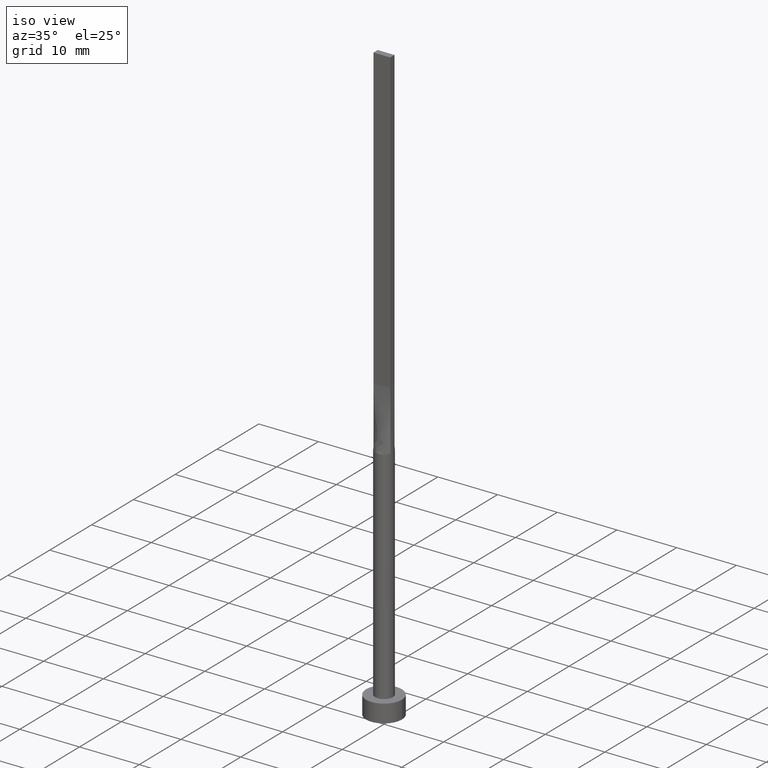
[diagram: clean part render]
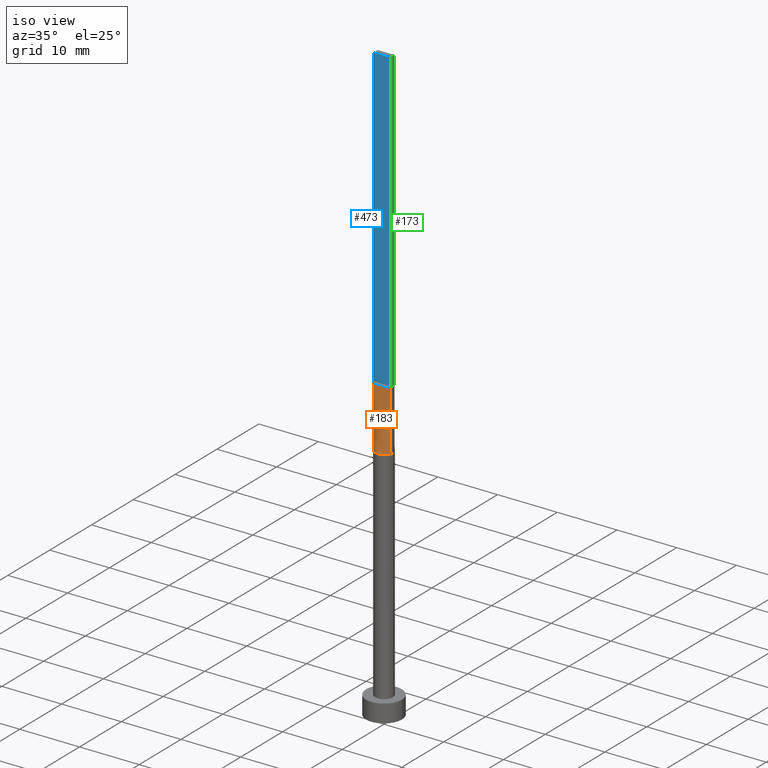
[diagram: same view with three faces highlighted in distinct colors, each labeled with its STEP entity id]
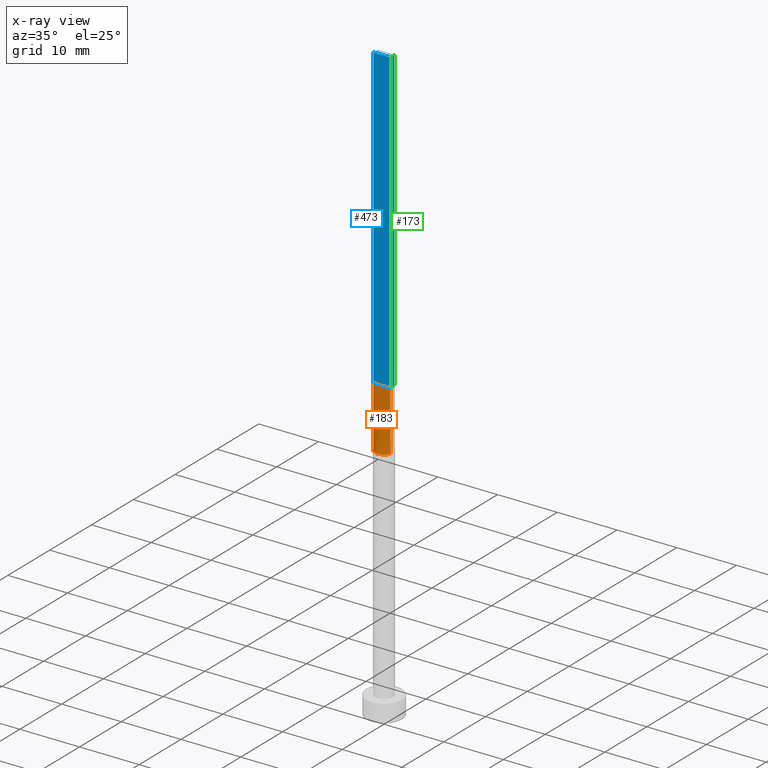
[diagram: x-ray of the same camera — body ghosted, the three highlighted faces saturated]
A machine part, iso view with three faces highlighted in distinct colors.
The next image is the same camera in x-ray (body ghosted, the three faces saturated) — at least one of them is partly hidden behind the body in this view.
Their STEP definitions:

[orange] entity #183 — the highlighted face is a freeform B-spline surface patch.
#3 = CARTESIAN_POINT ( 'NONE',  ( -0.5833333333333332593, -0.4999999999999996669, 50.00000000000000711 ) ) ;
#22 = EDGE_LOOP ( 'NONE', ( #106, #58, #563, #459 ) ) ;
#23 = CARTESIAN_POINT ( 'NONE',  ( -1.373020107211261109, -0.6153643240040214124, 39.99999999999999289 ) ) ;
#29 = CARTESIAN_POINT ( 'NONE',  ( 0.8182264876570946033, -1.266912425724810998, 40.00000000000000000 ) ) ;
#57 = DIRECTION ( 'NONE',  ( 0.000000000000000000, 0.000000000000000000, 1.000000000000000000 ) ) ;
#58 = ORIENTED_EDGE ( 'NONE', *, *, #359, .T. ) ;
#60 = VERTEX_POINT ( 'NONE', #192 ) ;
#66 = CARTESIAN_POINT ( 'NONE',  ( -0.1761797990592596230, -1.500000000000000000, 40.00000000000000000 ) ) ;
#68 = CARTESIAN_POINT ( 'NONE',  ( 0.1166666666666668073, -0.4999999999999997780, 50.00000000000000711 ) ) ;
#79 = CARTESIAN_POINT ( 'NONE',  ( -0.3520402531411755964, -1.468082505288407447, 40.00000000000000000 ) ) ;
#102 = CARTESIAN_POINT ( 'NONE',  ( 0.6732153042498572049, -1.351288176626052939, 40.00000000000000000 ) ) ;
#104 = CARTESIAN_POINT ( 'NONE',  ( -0.8166666666666667629, -0.4999999999999996669, 50.00000000000000000 ) ) ;
#105 = EDGE_CURVE ( 'NONE', #160, #60, #541, .T. ) ;
#106 = ORIENTED_EDGE ( 'NONE', *, *, #105, .T. ) ;
#111 = CARTESIAN_POINT ( 'NONE',  ( 1.412612867392256222, -0.5045045954972348090, 40.00000000000000000 ) ) ;
#115 = EDGE_CURVE ( 'NONE', #209, #160, #499, .T. ) ;
#127 = CARTESIAN_POINT ( 'NONE',  ( -1.406306433696128178, -0.5022522977486166829, 45.00000000000000000 ) ) ;
#130 = CARTESIAN_POINT ( 'NONE',  ( -0.6732153042498583151, -1.351288176626052051, 40.00000000000000000 ) ) ;
#157 = CARTESIAN_POINT ( 'NONE',  ( -1.166666666666666519, -0.4999999999999995559, 50.00000000000000000 ) ) ;
#159 = CARTESIAN_POINT ( 'NONE',  ( 0.8166666666666667629, -0.4999999999999997780, 50.00000000000000000 ) ) ;
#160 = VERTEX_POINT ( 'NONE', #547 ) ;
#163 = CARTESIAN_POINT ( 'NONE',  ( 1.062433464748102629, -1.070418989248103747, 39.99999999999998579 ) ) ;
#166 = CARTESIAN_POINT ( 'NONE',  ( 1.399999999999999911, -0.4999999999999997780, 50.00000000000000000 ) ) ;
#176 = CARTESIAN_POINT ( 'NONE',  ( -1.399999999999999911, -0.4999999999999995559, 50.00000000000000000 ) ) ;
#180 = VERTEX_POINT ( 'NONE', #413 ) ;
#183 = ADVANCED_FACE ( 'NONE', ( #239 ), #190, .T. ) ;
#190 = B_SPLINE_SURFACE_WITH_KNOTS ( 'NONE', 3, 1, ( 
 ( #329, #385 ),
 ( #23, #562 ),
 ( #495, #157 ),
 ( #342, #533 ),
 ( #514, #104 ),
 ( #230, #3 ),
 ( #130, #317 ),
 ( #79, #474 ),
 ( #66, #516 ),
 ( #570, #68 ),
 ( #431, #567 ),
 ( #102, #394 ),
 ( #29, #213 ),
 ( #163, #159 ),
 ( #247, #346 ),
 ( #343, #478 ),
 ( #204, #348 ),
 ( #111, #166 ) ),
 .UNSPECIFIED., .F., .F., .F.,
 ( 4, 2, 2, 2, 2, 2, 2, 2, 4 ),
 ( 2, 2 ),
 ( 0.000000000000000000, 0.1250000000000000000, 0.2500000000000000000, 0.3750000000000000000, 0.5000000000000000000, 0.6250000000000000000, 0.7500000000000000000, 0.8750000000000000000, 1.000000000000000000 ),
 ( 0.000000000000000000, 1.000000000000000000 ),
 .UNSPECIFIED. ) ;
#192 = CARTESIAN_POINT ( 'NONE',  ( 1.412648369950143756, -0.5045174509283282260, 40.00000000000000000 ) ) ;
#204 = CARTESIAN_POINT ( 'NONE',  ( 1.373020107211260665, -0.6153643240040224116, 40.00000000000000000 ) ) ;
#209 = VERTEX_POINT ( 'NONE', #176 ) ;
#213 = CARTESIAN_POINT ( 'NONE',  ( 0.5833333333333334814, -0.4999999999999997780, 50.00000000000000000 ) ) ;
#230 = CARTESIAN_POINT ( 'NONE',  ( -0.8182264876570952694, -1.266912425724809665, 40.00000000000000000 ) ) ;
#232 = DIRECTION ( 'NONE',  ( 1.000000000000000000, -7.744301232039317914E-17, 0.000000000000000000 ) ) ;
#239 = FACE_OUTER_BOUND ( 'NONE', #22, .T. ) ;
#247 = CARTESIAN_POINT ( 'NONE',  ( 1.161819288130433669, -0.9587178835757682593, 40.00000000000000711 ) ) ;
#268 = VECTOR ( 'NONE', #232, 1000.000000000000000 ) ;
#275 = DIRECTION ( 'NONE',  ( -0.001261285608005553900, -0.0004504591457162553103, -0.9999991031221843185 ) ) ;
#290 = CARTESIAN_POINT ( 'NONE',  ( 0.000000000000000000, 0.000000000000000000, 40.00000000000000000 ) ) ;
#313 = VECTOR ( 'NONE', #275, 1000.000000000000114 ) ;
#317 = CARTESIAN_POINT ( 'NONE',  ( -0.4666666666666665630, -0.4999999999999996669, 50.00000000000000711 ) ) ;
#324 = LINE ( 'NONE', #548, #519 ) ;
#329 = CARTESIAN_POINT ( 'NONE',  ( -1.412612867392256444, -0.5045045954972339208, 40.00000000000000000 ) ) ;
#330 = DIRECTION ( 'NONE',  ( -0.001261285608005532216, 0.0004504591457163203624, 0.9999991031221843185 ) ) ;
#342 = CARTESIAN_POINT ( 'NONE',  ( -1.161819288130434114, -0.9587178835757669271, 40.00000000000000000 ) ) ;
#343 = CARTESIAN_POINT ( 'NONE',  ( 1.316960349798174335, -0.7311494208568987130, 40.00000000000001421 ) ) ;
#346 = CARTESIAN_POINT ( 'NONE',  ( 0.9333333333333333481, -0.4999999999999997780, 50.00000000000000000 ) ) ;
#348 = CARTESIAN_POINT ( 'NONE',  ( 1.283333333333333437, -0.4999999999999997780, 50.00000000000000000 ) ) ;
#359 = EDGE_CURVE ( 'NONE', #60, #180, #324, .T. ) ;
#385 = CARTESIAN_POINT ( 'NONE',  ( -1.399999999999999911, -0.4999999999999995559, 50.00000000000000000 ) ) ;
#394 = CARTESIAN_POINT ( 'NONE',  ( 0.4666666666666667851, -0.4999999999999997780, 50.00000000000000000 ) ) ;
#413 = CARTESIAN_POINT ( 'NONE',  ( 1.399999999999999911, -0.4999999999999997780, 50.00000000000000000 ) ) ;
#431 = CARTESIAN_POINT ( 'NONE',  ( 0.3520402531411743752, -1.468082505288408113, 40.00000000000000000 ) ) ;
#459 = ORIENTED_EDGE ( 'NONE', *, *, #115, .T. ) ;
#466 = DIRECTION ( 'NONE',  ( 1.000000000000000000, 0.000000000000000000, 0.000000000000000000 ) ) ;
#474 = CARTESIAN_POINT ( 'NONE',  ( -0.2333333333333331705, -0.4999999999999996669, 50.00000000000000711 ) ) ;
#478 = CARTESIAN_POINT ( 'NONE',  ( 1.166666666666666519, -0.4999999999999997780, 50.00000000000000000 ) ) ;
#484 = LINE ( 'NONE', #534, #268 ) ;
#495 = CARTESIAN_POINT ( 'NONE',  ( -1.316960349798174557, -0.7311494208568978248, 40.00000000000001421 ) ) ;
#499 = LINE ( 'NONE', #127, #313 ) ;
#514 = CARTESIAN_POINT ( 'NONE',  ( -1.062433464748102852, -1.070418989248103081, 40.00000000000000000 ) ) ;
#516 = CARTESIAN_POINT ( 'NONE',  ( -0.1166666666666665297, -0.4999999999999996669, 50.00000000000000711 ) ) ;
#517 = AXIS2_PLACEMENT_3D ( 'NONE', #290, #57, #466 ) ;
#519 = VECTOR ( 'NONE', #330, 1000.000000000000114 ) ;
#533 = CARTESIAN_POINT ( 'NONE',  ( -0.9333333333333332371, -0.4999999999999995559, 50.00000000000000000 ) ) ;
#534 = CARTESIAN_POINT ( 'NONE',  ( -1.399999999999999911, -0.4999999999999995559, 50.00000000000000000 ) ) ;
#541 = CIRCLE ( 'NONE', #517, 1.500000000000000222 ) ;
#547 = CARTESIAN_POINT ( 'NONE',  ( -1.412629890847167724, -0.5045107419440655327, 40.00000000000000000 ) ) ;
#548 = CARTESIAN_POINT ( 'NONE',  ( 1.406306433696127955, -0.5022522977486173490, 45.00000000000000000 ) ) ;
#555 = EDGE_CURVE ( 'NONE', #209, #180, #484, .T. ) ;
#562 = CARTESIAN_POINT ( 'NONE',  ( -1.283333333333333215, -0.4999999999999995559, 50.00000000000000000 ) ) ;
#563 = ORIENTED_EDGE ( 'NONE', *, *, #555, .F. ) ;
#567 = CARTESIAN_POINT ( 'NONE',  ( 0.2333333333333334481, -0.4999999999999997780, 50.00000000000000000 ) ) ;
#570 = CARTESIAN_POINT ( 'NONE',  ( 0.1761797990592584850, -1.499999999999999556, 40.00000000000000000 ) ) ;

[blue] entity #473 — the highlighted planar face has unit normal (0, 1, -0).
#8 = DIRECTION ( 'NONE',  ( 1.000000000000000000, -7.744301232039317914E-17, 0.000000000000000000 ) ) ;
#14 = ORIENTED_EDGE ( 'NONE', *, *, #372, .T. ) ;
#48 = CARTESIAN_POINT ( 'NONE',  ( -1.399999999999999911, -0.4999999999999995559, 100.0000000000000000 ) ) ;
#49 = VERTEX_POINT ( 'NONE', #277 ) ;
#53 = DIRECTION ( 'NONE',  ( 7.744301232039317914E-17, 1.000000000000000000, -0.000000000000000000 ) ) ;
#176 = CARTESIAN_POINT ( 'NONE',  ( -1.399999999999999911, -0.4999999999999995559, 50.00000000000000000 ) ) ;
#180 = VERTEX_POINT ( 'NONE', #413 ) ;
#186 = AXIS2_PLACEMENT_3D ( 'NONE', #48, #53, #200 ) ;
#200 = DIRECTION ( 'NONE',  ( -1.000000000000000000, 7.744301232039317914E-17, 0.000000000000000000 ) ) ;
#202 = VECTOR ( 'NONE', #464, 1000.000000000000000 ) ;
#209 = VERTEX_POINT ( 'NONE', #176 ) ;
#218 = DIRECTION ( 'NONE',  ( -0.000000000000000000, -0.000000000000000000, -1.000000000000000000 ) ) ;
#222 = CARTESIAN_POINT ( 'NONE',  ( 1.399999999999999911, -0.4999999999999997780, 100.0000000000000000 ) ) ;
#232 = DIRECTION ( 'NONE',  ( 1.000000000000000000, -7.744301232039317914E-17, 0.000000000000000000 ) ) ;
#241 = ORIENTED_EDGE ( 'NONE', *, *, #260, .F. ) ;
#260 = EDGE_CURVE ( 'NONE', #49, #180, #580, .T. ) ;
#267 = LINE ( 'NONE', #523, #440 ) ;
#268 = VECTOR ( 'NONE', #232, 1000.000000000000000 ) ;
#277 = CARTESIAN_POINT ( 'NONE',  ( 1.399999999999999911, -0.4999999999999997780, 100.0000000000000000 ) ) ;
#289 = CARTESIAN_POINT ( 'NONE',  ( -1.399999999999999911, -0.4999999999999995559, 100.0000000000000000 ) ) ;
#326 = VECTOR ( 'NONE', #218, 1000.000000000000000 ) ;
#333 = ORIENTED_EDGE ( 'NONE', *, *, #555, .T. ) ;
#361 = EDGE_LOOP ( 'NONE', ( #333, #241, #452, #14 ) ) ;
#372 = EDGE_CURVE ( 'NONE', #417, #209, #376, .T. ) ;
#376 = LINE ( 'NONE', #289, #202 ) ;
#413 = CARTESIAN_POINT ( 'NONE',  ( 1.399999999999999911, -0.4999999999999997780, 50.00000000000000000 ) ) ;
#417 = VERTEX_POINT ( 'NONE', #530 ) ;
#440 = VECTOR ( 'NONE', #8, 1000.000000000000000 ) ;
#443 = EDGE_CURVE ( 'NONE', #417, #49, #267, .T. ) ;
#452 = ORIENTED_EDGE ( 'NONE', *, *, #443, .F. ) ;
#458 = FACE_OUTER_BOUND ( 'NONE', #361, .T. ) ;
#464 = DIRECTION ( 'NONE',  ( -0.000000000000000000, -0.000000000000000000, -1.000000000000000000 ) ) ;
#473 = ADVANCED_FACE ( 'NONE', ( #458 ), #505, .F. ) ;
#484 = LINE ( 'NONE', #534, #268 ) ;
#505 = PLANE ( 'NONE',  #186 ) ;
#523 = CARTESIAN_POINT ( 'NONE',  ( -1.399999999999999911, -0.4999999999999995559, 100.0000000000000000 ) ) ;
#530 = CARTESIAN_POINT ( 'NONE',  ( -1.399999999999999911, -0.4999999999999995559, 100.0000000000000000 ) ) ;
#534 = CARTESIAN_POINT ( 'NONE',  ( -1.399999999999999911, -0.4999999999999995559, 50.00000000000000000 ) ) ;
#555 = EDGE_CURVE ( 'NONE', #209, #180, #484, .T. ) ;
#580 = LINE ( 'NONE', #222, #326 ) ;

[green] entity #173 — the highlighted planar face has unit normal (-1, -0, 0).
#4 = LINE ( 'NONE', #274, #140 ) ;
#17 = AXIS2_PLACEMENT_3D ( 'NONE', #88, #430, #42 ) ;
#42 = DIRECTION ( 'NONE',  ( 2.168404344971008868E-16, -1.000000000000000000, 0.000000000000000000 ) ) ;
#49 = VERTEX_POINT ( 'NONE', #277 ) ;
#86 = ORIENTED_EDGE ( 'NONE', *, *, #227, .F. ) ;
#88 = CARTESIAN_POINT ( 'NONE',  ( 1.399999999999999911, -0.4999999999999997780, 100.0000000000000000 ) ) ;
#119 = LINE ( 'NONE', #262, #569 ) ;
#137 = CARTESIAN_POINT ( 'NONE',  ( 1.399999999999999689, 0.5000000000000002220, 50.00000000000000000 ) ) ;
#140 = VECTOR ( 'NONE', #419, 1000.000000000000000 ) ;
#173 = ADVANCED_FACE ( 'NONE', ( #454 ), #369, .F. ) ;
#180 = VERTEX_POINT ( 'NONE', #413 ) ;
#193 = LINE ( 'NONE', #508, #532 ) ;
#218 = DIRECTION ( 'NONE',  ( -0.000000000000000000, -0.000000000000000000, -1.000000000000000000 ) ) ;
#222 = CARTESIAN_POINT ( 'NONE',  ( 1.399999999999999911, -0.4999999999999997780, 100.0000000000000000 ) ) ;
#227 = EDGE_CURVE ( 'NONE', #468, #344, #119, .T. ) ;
#246 = ORIENTED_EDGE ( 'NONE', *, *, #436, .F. ) ;
#260 = EDGE_CURVE ( 'NONE', #49, #180, #580, .T. ) ;
#262 = CARTESIAN_POINT ( 'NONE',  ( 1.399999999999999689, 0.5000000000000002220, 100.0000000000000000 ) ) ;
#274 = CARTESIAN_POINT ( 'NONE',  ( 1.399999999999999911, -0.4999999999999997780, 100.0000000000000000 ) ) ;
#277 = CARTESIAN_POINT ( 'NONE',  ( 1.399999999999999911, -0.4999999999999997780, 100.0000000000000000 ) ) ;
#281 = CARTESIAN_POINT ( 'NONE',  ( 1.399999999999999689, 0.5000000000000002220, 100.0000000000000000 ) ) ;
#282 = ORIENTED_EDGE ( 'NONE', *, *, #335, .T. ) ;
#299 = EDGE_LOOP ( 'NONE', ( #282, #86, #246, #373 ) ) ;
#326 = VECTOR ( 'NONE', #218, 1000.000000000000000 ) ;
#335 = EDGE_CURVE ( 'NONE', #180, #344, #193, .T. ) ;
#344 = VERTEX_POINT ( 'NONE', #137 ) ;
#369 = PLANE ( 'NONE',  #17 ) ;
#373 = ORIENTED_EDGE ( 'NONE', *, *, #260, .T. ) ;
#408 = DIRECTION ( 'NONE',  ( -0.000000000000000000, -0.000000000000000000, -1.000000000000000000 ) ) ;
#413 = CARTESIAN_POINT ( 'NONE',  ( 1.399999999999999911, -0.4999999999999997780, 50.00000000000000000 ) ) ;
#419 = DIRECTION ( 'NONE',  ( -2.168404344971008868E-16, 1.000000000000000000, 0.000000000000000000 ) ) ;
#430 = DIRECTION ( 'NONE',  ( -1.000000000000000000, -2.168404344971008868E-16, 0.000000000000000000 ) ) ;
#436 = EDGE_CURVE ( 'NONE', #49, #468, #4, .T. ) ;
#454 = FACE_OUTER_BOUND ( 'NONE', #299, .T. ) ;
#468 = VERTEX_POINT ( 'NONE', #281 ) ;
#508 = CARTESIAN_POINT ( 'NONE',  ( 1.399999999999999689, 0.5000000000000002220, 50.00000000000000000 ) ) ;
#532 = VECTOR ( 'NONE', #540, 1000.000000000000000 ) ;
#540 = DIRECTION ( 'NONE',  ( -2.168404344971008868E-16, 1.000000000000000000, -0.000000000000000000 ) ) ;
#569 = VECTOR ( 'NONE', #408, 1000.000000000000000 ) ;
#580 = LINE ( 'NONE', #222, #326 ) ;